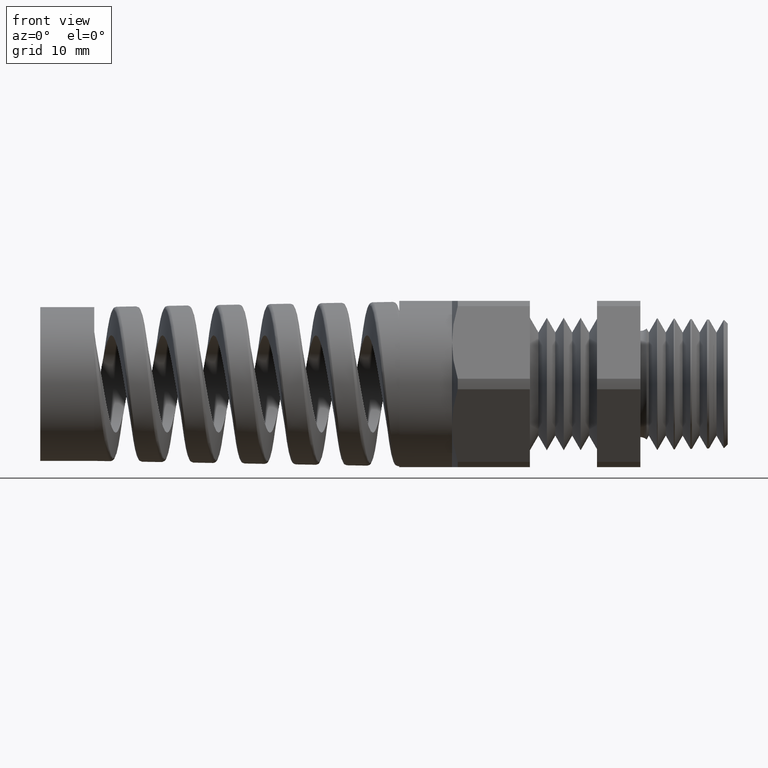
[diagram: clean part render]
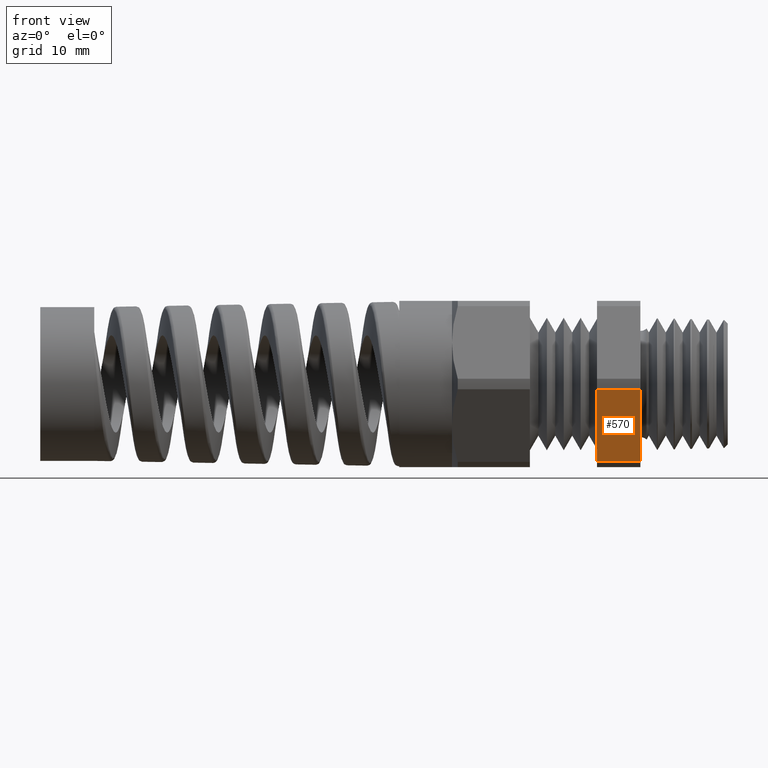
[diagram: same view with one face highlighted and labeled with its STEP entity id]
A machine part, front view. The second image highlights one B-rep face of the part: STEP entity #570.
In plain terms, the highlighted planar face has unit normal (0, -0.866, -0.5).
Its self-contained STEP definition (entity closure, byte-faithful):
#411 = EDGE_CURVE ( 'NONE', #412, #413, #2007, .T. ) ;
#412 = VERTEX_POINT ( 'NONE', #2003 ) ;
#413 = VERTEX_POINT ( 'NONE', #2002 ) ;
#456 = EDGE_CURVE ( 'NONE', #413, #457, #2069, .T. ) ;
#457 = VERTEX_POINT ( 'NONE', #2060 ) ;
#473 = EDGE_CURVE ( 'NONE', #412, #474, #2098, .T. ) ;
#474 = VERTEX_POINT ( 'NONE', #2090 ) ;
#486 = EDGE_CURVE ( 'NONE', #474, #457, #2132, .T. ) ;
#570 = ADVANCED_FACE ( 'NONE', ( #2245 ), #2244, .T. ) ;
#571 = EDGE_LOOP ( 'NONE', ( #572, #573, #574, #575 ) ) ;
#572 = ORIENTED_EDGE ( 'NONE', *, *, #411, .T. ) ;
#573 = ORIENTED_EDGE ( 'NONE', *, *, #456, .T. ) ;
#574 = ORIENTED_EDGE ( 'NONE', *, *, #486, .F. ) ;
#575 = ORIENTED_EDGE ( 'NONE', *, *, #473, .F. ) ;
#2002 = CARTESIAN_POINT ( 'NONE',  ( -0.1542288557213930500, -0.1810813248601904100, -0.2763579450402650600 ) ) ;
#2003 = CARTESIAN_POINT ( 'NONE',  ( -0.1542288557213930500, -0.3298736633726285200, -0.01864205495973509500 ) ) ;
#2004 = DIRECTION ( 'NONE',  ( 0.0000000000000000000, 0.5000000000000002200, -0.8660254037844383700 ) ) ;
#2005 = VECTOR ( 'NONE', #2004, 39.37007874015748100 ) ;
#2006 = CARTESIAN_POINT ( 'NONE',  ( -0.1542288557213930500, -0.1967274941164093600, -0.2492579849446716600 ) ) ;
#2007 = LINE ( 'NONE', #2006, #2005 ) ;
#2060 = CARTESIAN_POINT ( 'NONE',  ( 0.0000000000000000000, -0.1810813248601904300, -0.2763579450402651700 ) ) ;
#2061 = DIRECTION ( 'NONE',  ( 1.000000000000000000, 0.0000000000000000000, 0.0000000000000000000 ) ) ;
#2062 = VECTOR ( 'NONE', #2061, 39.37007874015748100 ) ;
#2063 = CARTESIAN_POINT ( 'NONE',  ( -1.612607445236302600, -0.1810813248601904100, -0.2763579450402650600 ) ) ;
#2069 = LINE ( 'NONE', #2063, #2062 ) ;
#2090 = CARTESIAN_POINT ( 'NONE',  ( 0.0000000000000000000, -0.3298736633726285200, -0.01864205495973509500 ) ) ;
#2091 = DIRECTION ( 'NONE',  ( 1.000000000000000000, 0.0000000000000000000, 0.0000000000000000000 ) ) ;
#2092 = VECTOR ( 'NONE', #2091, 39.37007874015748100 ) ;
#2093 = CARTESIAN_POINT ( 'NONE',  ( -1.612607445236302600, -0.3298736633726285200, -0.01864205495973509500 ) ) ;
#2098 = LINE ( 'NONE', #2093, #2092 ) ;
#2129 = DIRECTION ( 'NONE',  ( 0.0000000000000000000, 0.5000000000000002200, -0.8660254037844384900 ) ) ;
#2130 = VECTOR ( 'NONE', #2129, 39.37007874015749600 ) ;
#2131 = CARTESIAN_POINT ( 'NONE',  ( 0.0000000000000000000, -0.3298736633726285200, -0.01864205495973509500 ) ) ;
#2132 = LINE ( 'NONE', #2131, #2130 ) ;
#2240 = DIRECTION ( 'NONE',  ( 0.0000000000000000000, 0.5000000000000002200, -0.8660254037844384900 ) ) ;
#2241 = DIRECTION ( 'NONE',  ( 0.0000000000000000000, -0.8660254037844386000, -0.5000000000000003300 ) ) ;
#2242 = CARTESIAN_POINT ( 'NONE',  ( -1.612607445236302600, -0.3298736633726285200, -0.01864205495973509500 ) ) ;
#2243 = AXIS2_PLACEMENT_3D ( 'NONE', #2242, #2241, #2240 ) ;
#2244 = PLANE ( 'NONE',  #2243 ) ;
#2245 = FACE_OUTER_BOUND ( 'NONE', #571, .T. ) ;